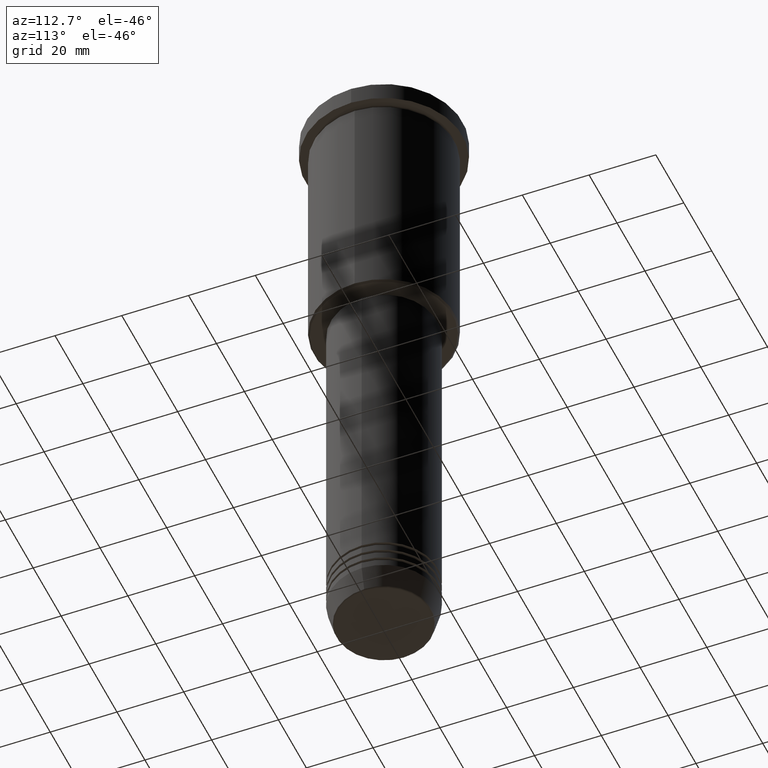
[diagram: clean part render]
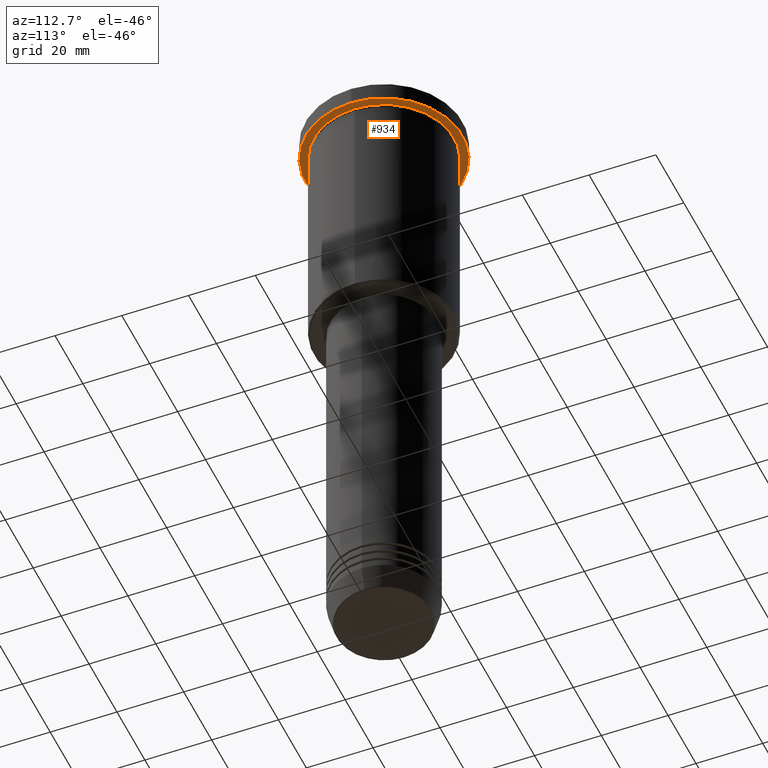
[diagram: same view with one face highlighted and labeled with its STEP entity id]
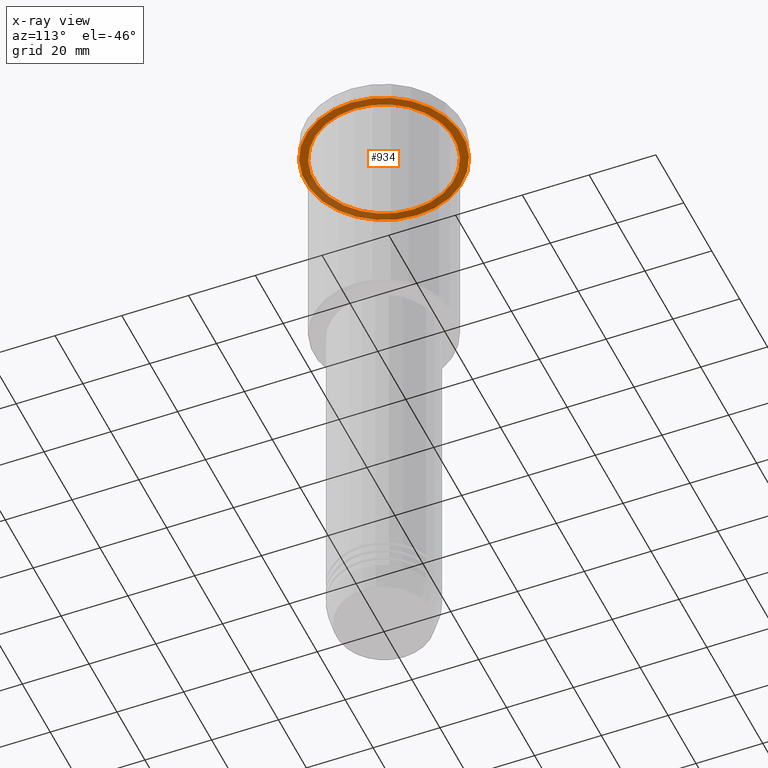
[diagram: x-ray of the same camera — body ghosted, the highlighted face saturated]
A machine part, auxiliary view. The second image highlights one B-rep face of the part: STEP entity #934.
The next image is the same camera in x-ray: the body ghosted, the highlighted face saturated — about 37% of this face is hidden behind the body in this view.
In plain terms, the highlighted planar face has unit normal (0, 0, -1).
Its self-contained STEP definition (entity closure, byte-faithful):
#23 = CARTESIAN_POINT ( 'NONE',  ( -21.00000000000000000, 0.000000000000000000, -5.999999999999994671 ) ) ;
#25 = ORIENTED_EDGE ( 'NONE', *, *, #1096, .F. ) ;
#28 = DIRECTION ( 'NONE',  ( -0.000000000000000000, -0.000000000000000000, 1.000000000000000000 ) ) ;
#38 = CARTESIAN_POINT ( 'NONE',  ( 0.000000000000000000, 23.50000000000000000, -5.999999999999994671 ) ) ;
#60 = CARTESIAN_POINT ( 'NONE',  ( -23.50000000000000000, 2.877919977996280320E-15, -5.999999999999994671 ) ) ;
#108 = CIRCLE ( 'NONE', #1164, 23.50000000000000000 ) ;
#143 = CIRCLE ( 'NONE', #553, 21.00000000000000000 ) ;
#157 = CIRCLE ( 'NONE', #354, 23.50000000000000000 ) ;
#159 = DIRECTION ( 'NONE',  ( -0.000000000000000000, -0.000000000000000000, 1.000000000000000000 ) ) ;
#250 = DIRECTION ( 'NONE',  ( -0.000000000000000000, -0.000000000000000000, 1.000000000000000000 ) ) ;
#296 = CARTESIAN_POINT ( 'NONE',  ( 23.50000000000000000, 0.000000000000000000, -5.999999999999994671 ) ) ;
#298 = ORIENTED_EDGE ( 'NONE', *, *, #379, .T. ) ;
#331 = AXIS2_PLACEMENT_3D ( 'NONE', #951, #28, #1049 ) ;
#335 = DIRECTION ( 'NONE',  ( -0.000000000000000000, -0.000000000000000000, 1.000000000000000000 ) ) ;
#344 = VERTEX_POINT ( 'NONE', #296 ) ;
#354 = AXIS2_PLACEMENT_3D ( 'NONE', #1086, #250, #534 ) ;
#379 = EDGE_CURVE ( 'NONE', #1041, #775, #393, .T. ) ;
#393 = CIRCLE ( 'NONE', #331, 21.00000000000000000 ) ;
#407 = DIRECTION ( 'NONE',  ( -1.000000000000000000, 0.000000000000000000, -0.000000000000000000 ) ) ;
#534 = DIRECTION ( 'NONE',  ( 1.000000000000000000, 0.000000000000000000, 0.000000000000000000 ) ) ;
#553 = AXIS2_PLACEMENT_3D ( 'NONE', #1169, #159, #1088 ) ;
#650 = EDGE_CURVE ( 'NONE', #1071, #344, #157, .T. ) ;
#679 = DIRECTION ( 'NONE',  ( 0.000000000000000000, 0.000000000000000000, -1.000000000000000000 ) ) ;
#747 = EDGE_LOOP ( 'NONE', ( #897, #298 ) ) ;
#775 = VERTEX_POINT ( 'NONE', #23 ) ;
#824 = DIRECTION ( 'NONE',  ( 1.000000000000000000, 0.000000000000000000, 0.000000000000000000 ) ) ;
#877 = FACE_BOUND ( 'NONE', #747, .T. ) ;
#892 = EDGE_LOOP ( 'NONE', ( #25, #1009 ) ) ;
#894 = PLANE ( 'NONE',  #1146 ) ;
#897 = ORIENTED_EDGE ( 'NONE', *, *, #1050, .T. ) ;
#898 = CARTESIAN_POINT ( 'NONE',  ( 0.000000000000000000, 0.000000000000000000, -5.999999999999994671 ) ) ;
#934 = ADVANCED_FACE ( 'NONE', ( #877, #1147 ), #894, .T. ) ;
#951 = CARTESIAN_POINT ( 'NONE',  ( 0.000000000000000000, 0.000000000000000000, -5.999999999999994671 ) ) ;
#1009 = ORIENTED_EDGE ( 'NONE', *, *, #650, .F. ) ;
#1041 = VERTEX_POINT ( 'NONE', #1085 ) ;
#1049 = DIRECTION ( 'NONE',  ( -1.000000000000000000, 0.000000000000000000, 0.000000000000000000 ) ) ;
#1050 = EDGE_CURVE ( 'NONE', #775, #1041, #143, .T. ) ;
#1071 = VERTEX_POINT ( 'NONE', #60 ) ;
#1085 = CARTESIAN_POINT ( 'NONE',  ( 21.00000000000000000, 2.571758278209441661E-15, -5.999999999999994671 ) ) ;
#1086 = CARTESIAN_POINT ( 'NONE',  ( 0.000000000000000000, 0.000000000000000000, -5.999999999999994671 ) ) ;
#1088 = DIRECTION ( 'NONE',  ( -1.000000000000000000, 0.000000000000000000, 0.000000000000000000 ) ) ;
#1096 = EDGE_CURVE ( 'NONE', #344, #1071, #108, .T. ) ;
#1146 = AXIS2_PLACEMENT_3D ( 'NONE', #38, #679, #407 ) ;
#1147 = FACE_OUTER_BOUND ( 'NONE', #892, .T. ) ;
#1164 = AXIS2_PLACEMENT_3D ( 'NONE', #898, #335, #824 ) ;
#1169 = CARTESIAN_POINT ( 'NONE',  ( 0.000000000000000000, 0.000000000000000000, -5.999999999999994671 ) ) ;